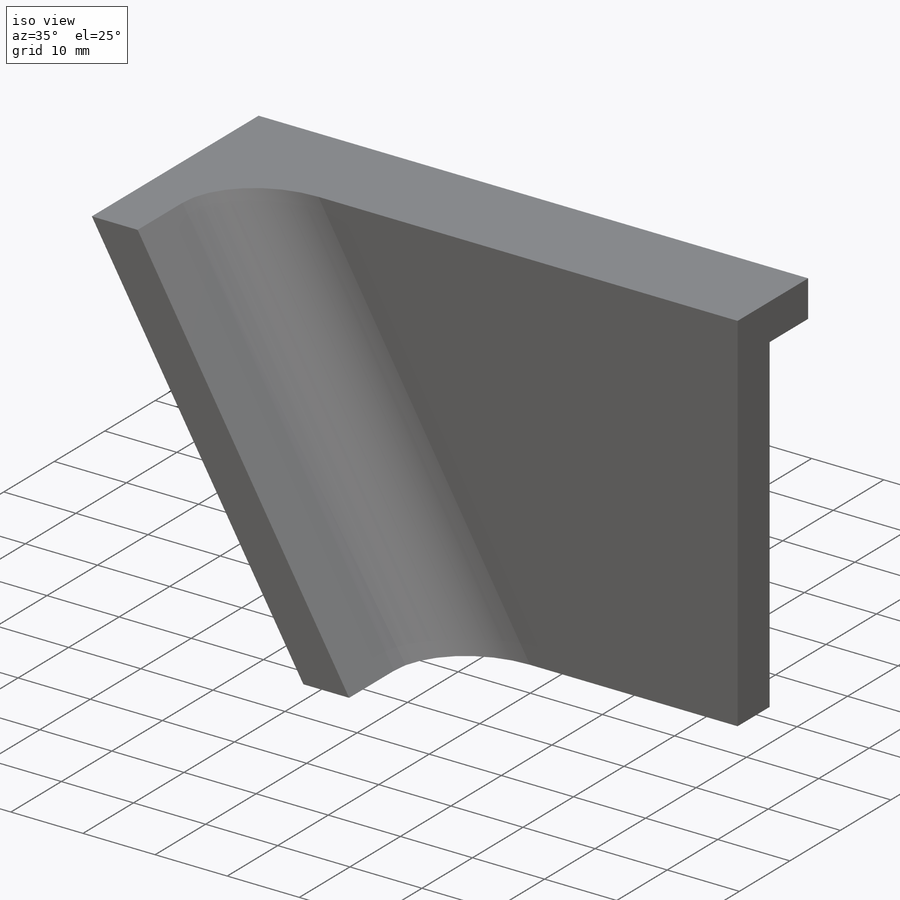
[diagram: iso view]
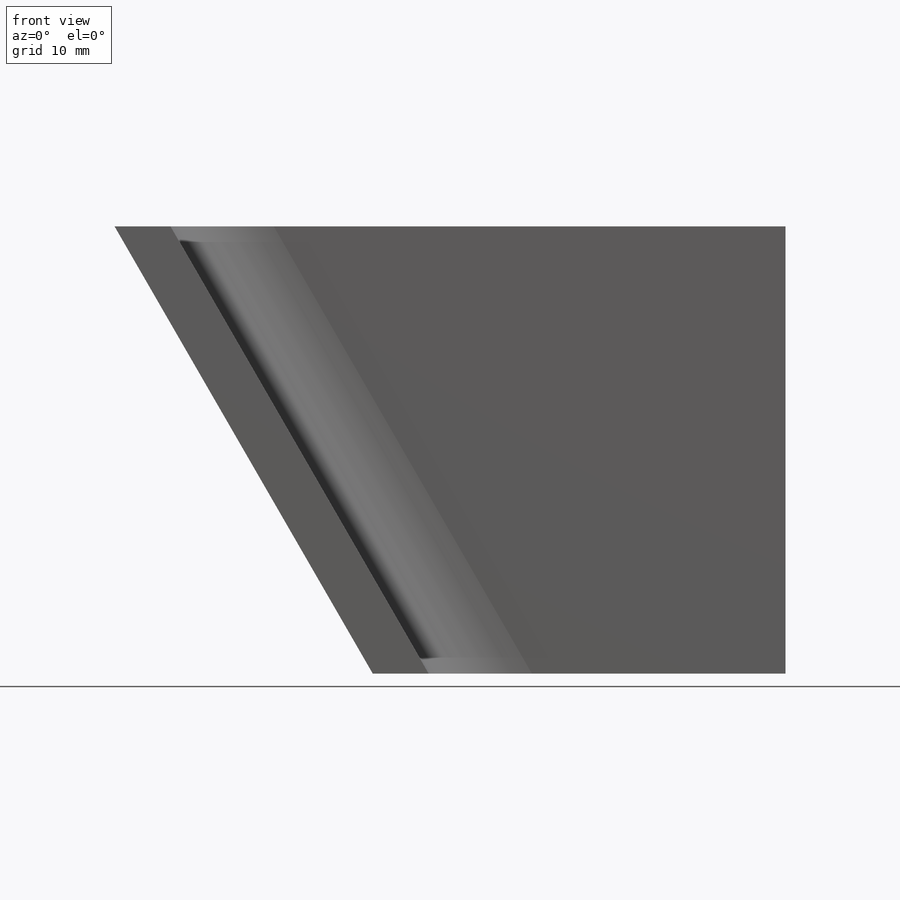
[diagram: front view]
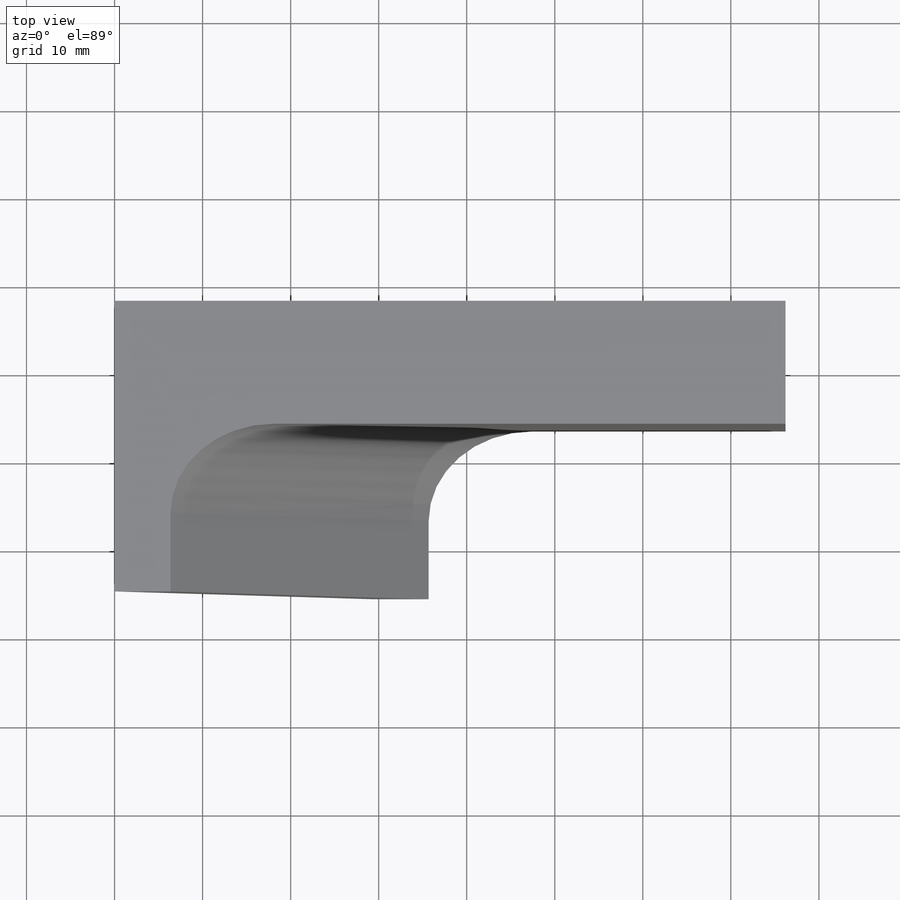
[diagram: top view]
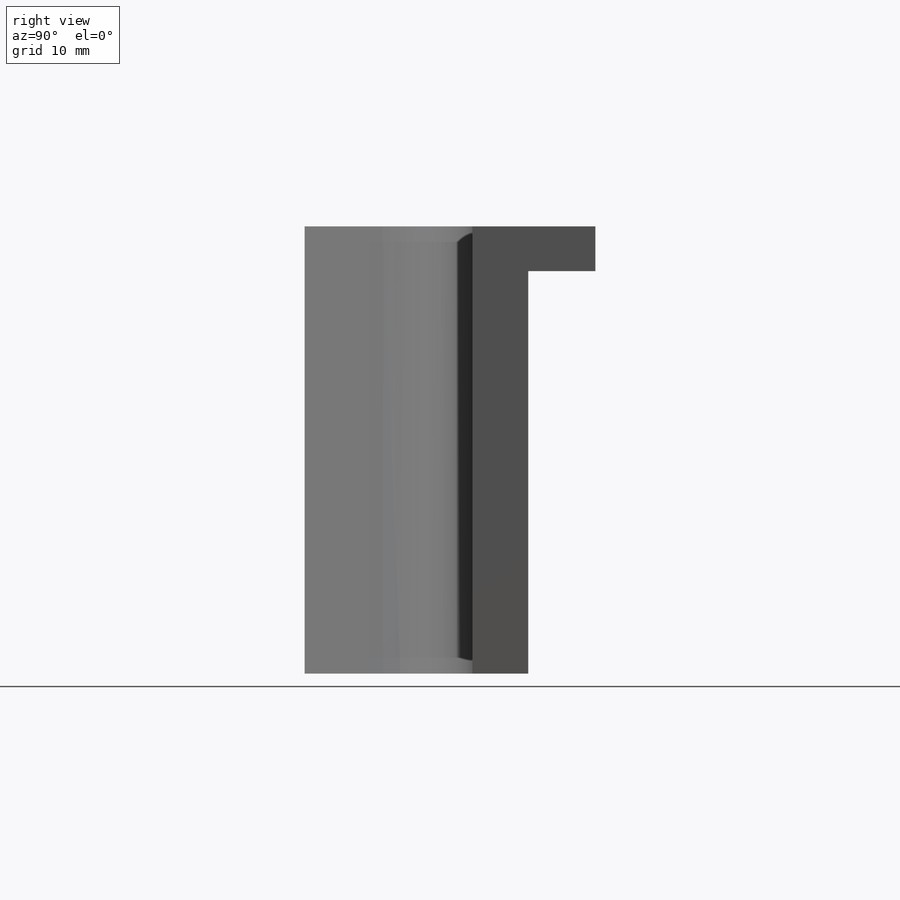
[diagram: right view]
SOLIDWORKS PART (.sldprt)
format: sldprt  version: not decoded by parser v0  size: 180,224 bytes
history: native  units: mm
features: sketch x3, extrude x3, material x1, plane x1, fillet x1 (+13 scaffold rows collapsed)
feature tree (22):
  scaffold x13  (default folders/planes/origin — collapsed)
  material  "Material <not specified>"
  sketch  "Sketch1"  dims[c1.D1=~69.552831mm c2.D1=60.0deg c2.D2=76.2mm c2.D3=50.8mm]
  extrude  "Boss-Extrude1"  Depth=6.35mm
  sketch  "Sketch2"  dims[D1=5.08mm]
  extrude  "Boss-Extrude2"  Depth=7.62mm
  plane  "Plane1"  Offset=0mm
  sketch  "Sketch3"  dims[D1=6.35mm D2=6.35mm]
  extrude  "Boss-Extrude3"  Depth=19.05mm
  fillet  "Fillet1"  Radius=10.16mm
decode coverage: 7 of 7 modeling features carry decoded parameters
note: ~ marks probable driven/reference dimensions
note: suppression state not decoded; provenance and decode notes live in map.json
